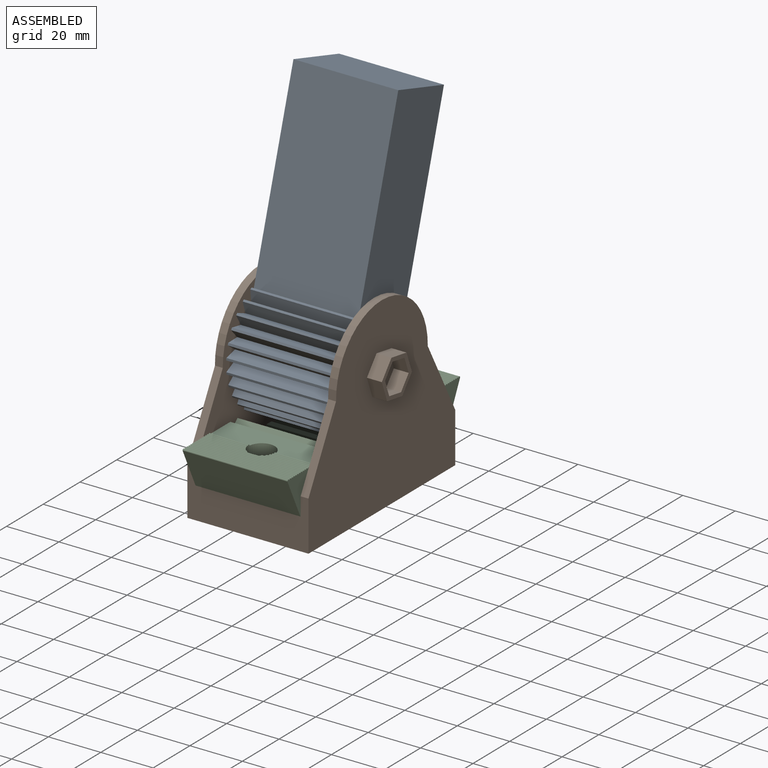
[diagram: assembled view]
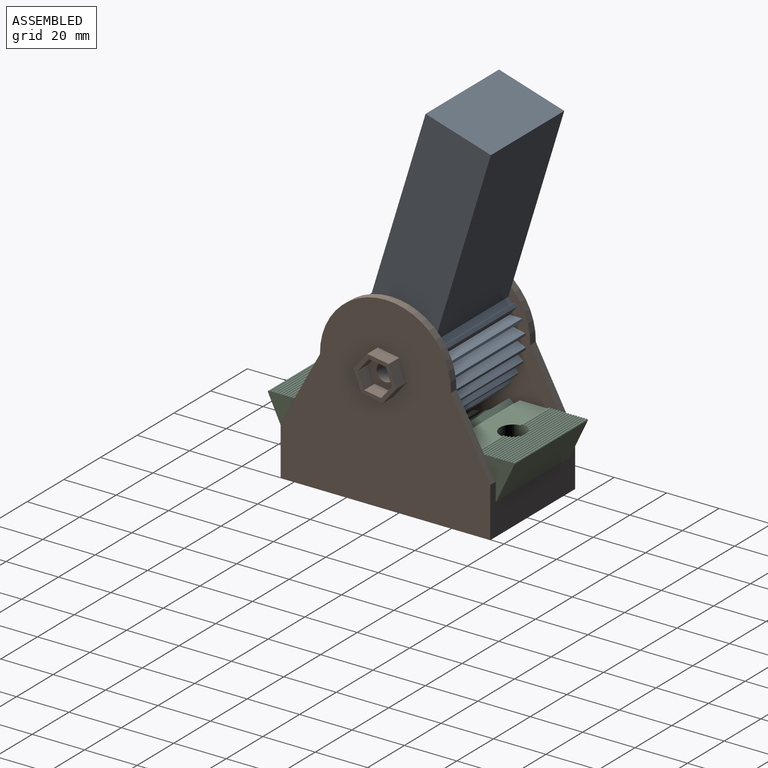
[diagram: assembled view, second angle]
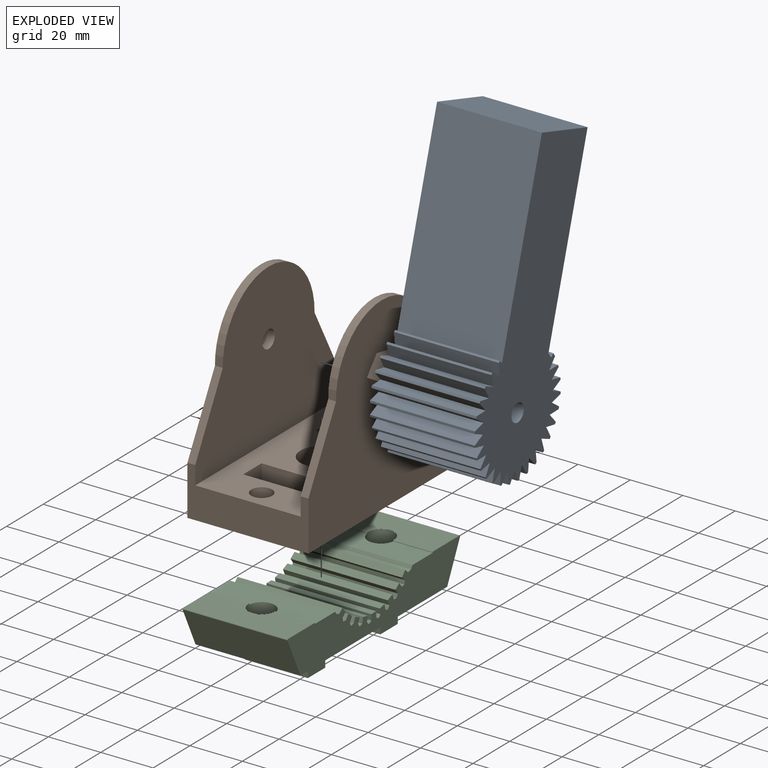
[diagram: exploded view]
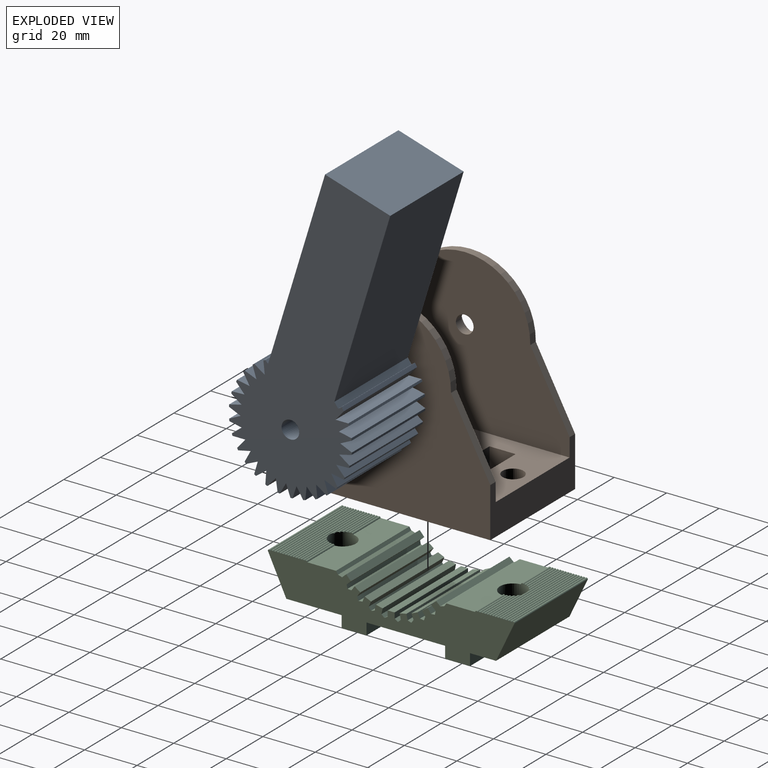
[diagram: exploded view, second angle]
ASSEMBLY  parts=3 mates=2
PART A: 79 faces, bbox 40x47x114.8 mm
  f0: plane 74.37x40mm, normal (0,-1,0), area 2974.9mm2, adj f1,f75,f77,f78
  f1: plane 40x1.29mm, normal (0,0.49,0.87), area 59.3mm2, adj f0,f2,f77,f78
  f2: cylinder r=23.5mm len=40mm, axis (1,0,0), area 33.2mm2, adj f1,f3,f77,f78
  f3: plane 40x4.47mm, normal (0,-0.92,-0.39), area 194.5mm2, adj f2,f4,f77,f78
  f4: plane 40x4.65mm, normal (0,0.29,0.96), area 194.5mm2, adj f3,f5,f77,f78
  f5: cylinder r=23.5mm len=40mm, axis (1,0,0), area 33.2mm2, adj f4,f6,f77,f78
  f6: plane 40x3.98mm, normal (0,-0.82,-0.58), area 194.5mm2, adj f5,f7,f77,f78
  f7: plane 40x4.84mm, normal (0,0.09,1), area 194.5mm2, adj f6,f8,f77,f78
  f8: cylinder r=23.5mm len=40mm, axis (1,0,0), area 33.2mm2, adj f7,f9,f77,f78
  f9: plane 40x3.56mm, normal (0,-0.68,-0.73), area 194.5mm2, adj f8,f10,f77,f78
  f10: plane 40x4.83mm, normal (0,-0.12,0.99), area 194.5mm2, adj f9,f11,f77,f78
  f11: cylinder r=23.5mm len=40mm, axis (1,0,0), area 33.2mm2, adj f10,f12,f77,f78
  f12: plane 40x4.17mm, normal (0,-0.51,-0.86), area 194.5mm2, adj f11,f13,f77,f78
  f13: plane 40x4.6mm, normal (0,-0.32,0.95), area 194.5mm2, adj f12,f14,f77,f78
  f14: cylinder r=23.5mm len=40mm, axis (1,0,0), area 33.2mm2, adj f13,f15,f77,f78
  f15: plane 40x4.6mm, normal (0,-0.32,-0.95), area 194.5mm2, adj f14,f16,f77,f78
  f16: plane 40x4.17mm, normal (0,-0.51,0.86), area 194.5mm2, adj f15,f17,f77,f78
  f17: cylinder r=23.5mm len=40mm, axis (1,0,0), area 33.2mm2, adj f16,f18,f77,f78
  f18: plane 40x4.83mm, normal (0,-0.12,-0.99), area 194.5mm2, adj f17,f19,f77,f78
  f19: plane 40x3.56mm, normal (0,-0.68,0.73), area 194.5mm2, adj f18,f20,f77,f78
  f20: cylinder r=23.5mm len=40mm, axis (1,0,0), area 33.2mm2, adj f19,f21,f77,f78
  f21: plane 40x4.84mm, normal (0,0.09,-1), area 194.5mm2, adj f20,f22,f77,f78
  f22: plane 40x3.98mm, normal (0,-0.82,0.58), area 194.5mm2, adj f21,f23,f77,f78
  f23: cylinder r=23.5mm len=40mm, axis (1,0,0), area 33.2mm2, adj f22,f24,f77,f78
  f24: plane 40x4.65mm, normal (0,0.29,-0.96), area 194.5mm2, adj f23,f25,f77,f78
  f25: plane 40x4.47mm, normal (0,-0.92,0.39), area 194.5mm2, adj f24,f26,f77,f78
  f26: cylinder r=23.5mm len=40mm, axis (1,0,0), area 33.2mm2, adj f25,f27,f77,f78
  f27: plane 40x4.25mm, normal (0,0.49,-0.87), area 194.5mm2, adj f26,f28,f77,f78
  f28: plane 40x4.77mm, normal (0,-0.98,0.19), area 194.5mm2, adj f27,f29,f77,f78
  f29: cylinder r=23.5mm len=40mm, axis (1,0,0), area 33.2mm2, adj f28,f30,f77,f78
  f30: plane 40x3.66mm, normal (0,0.66,-0.75), area 194.5mm2, adj f29,f31,f77,f78
  f31: plane 40x4.86mm, normal (0,-1,-0.01), area 194.5mm2, adj f30,f32,f77,f78
  f32: cylinder r=23.5mm len=40mm, axis (1,0,0), area 33.2mm2, adj f31,f33,f77,f78
  f33: plane 40x3.89mm, normal (0,0.8,-0.6), area 194.5mm2, adj f32,f34,f77,f78
  f34: plane 40x4.74mm, normal (0,-0.97,-0.22), area 194.5mm2, adj f33,f35,f77,f78
  f35: cylinder r=23.5mm len=40mm, axis (1,0,0), area 33.2mm2, adj f34,f36,f77,f78
  f36: plane 40x4.41mm, normal (0,0.91,-0.42), area 194.5mm2, adj f35,f37,f77,f78
  f37: plane 40x4.41mm, normal (0,-0.91,-0.42), area 194.5mm2, adj f36,f38,f77,f78
  f38: cylinder r=23.5mm len=40mm, axis (1,0,0), area 33.2mm2, adj f37,f39,f77,f78
  f39: plane 40x4.74mm, normal (0,0.97,-0.22), area 194.5mm2, adj f38,f40,f77,f78
  f40: plane 40x3.89mm, normal (0,-0.8,-0.6), area 194.5mm2, adj f39,f41,f77,f78
  f41: cylinder r=23.5mm len=40mm, axis (1,0,0), area 33.2mm2, adj f40,f42,f77,f78
  f42: plane 40x4.86mm, normal (0,1,-0.01), area 194.5mm2, adj f41,f43,f77,f78
  f43: plane 40x3.66mm, normal (0,-0.66,-0.75), area 194.5mm2, adj f42,f44,f77,f78
  f44: cylinder r=23.5mm len=40mm, axis (1,0,0), area 33.2mm2, adj f43,f45,f77,f78
  f45: plane 40x4.77mm, normal (0,0.98,0.19), area 194.5mm2, adj f44,f46,f77,f78
  f46: plane 40x4.25mm, normal (0,-0.49,-0.87), area 194.5mm2, adj f45,f47,f77,f78
  f47: cylinder r=23.5mm len=40mm, axis (1,0,0), area 33.2mm2, adj f46,f48,f77,f78
  f48: plane 40x4.47mm, normal (0,0.92,0.39), area 194.5mm2, adj f47,f49,f77,f78
  f49: plane 40x4.65mm, normal (0,-0.29,-0.96), area 194.5mm2, adj f48,f50,f77,f78
  f50: cylinder r=23.5mm len=40mm, axis (1,0,0), area 33.2mm2, adj f49,f51,f77,f78
  f51: plane 40x3.98mm, normal (0,0.82,0.58), area 194.5mm2, adj f50,f52,f77,f78
  f52: plane 40x4.84mm, normal (0,-0.09,-1), area 194.5mm2, adj f51,f53,f77,f78
  f53: cylinder r=23.5mm len=40mm, axis (1,0,0), area 33.2mm2, adj f52,f54,f77,f78
  f54: plane 40x3.56mm, normal (0,0.68,0.73), area 194.5mm2, adj f53,f55,f77,f78
  f55: plane 40x4.83mm, normal (0,0.12,-0.99), area 194.5mm2, adj f54,f56,f77,f78
  f56: cylinder r=23.5mm len=40mm, axis (1,0,0), area 33.2mm2, adj f55,f57,f77,f78
  f57: plane 40x4.17mm, normal (0,0.51,0.86), area 194.5mm2, adj f56,f58,f77,f78
  f58: plane 40x4.6mm, normal (0,0.32,-0.95), area 194.5mm2, adj f57,f59,f77,f78
  f59: cylinder r=23.5mm len=40mm, axis (1,0,0), area 33.2mm2, adj f58,f60,f77,f78
  f60: plane 40x4.6mm, normal (0,0.32,0.95), area 194.5mm2, adj f59,f61,f77,f78
  f61: plane 40x4.17mm, normal (0,0.51,-0.86), area 194.5mm2, adj f60,f62,f77,f78
  f62: cylinder r=23.5mm len=40mm, axis (1,0,0), area 33.2mm2, adj f61,f63,f77,f78
  f63: plane 40x4.83mm, normal (0,0.12,0.99), area 194.5mm2, adj f62,f64,f77,f78
  f64: plane 40x3.56mm, normal (0,0.68,-0.73), area 194.5mm2, adj f63,f65,f77,f78
  f65: cylinder r=23.5mm len=40mm, axis (1,0,0), area 33.2mm2, adj f64,f66,f77,f78
  f66: plane 40x4.84mm, normal (0,-0.09,1), area 194.5mm2, adj f65,f67,f77,f78
  f67: plane 40x3.98mm, normal (0,0.82,-0.58), area 194.5mm2, adj f66,f68,f77,f78
  f68: cylinder r=23.5mm len=40mm, axis (1,0,0), area 33.2mm2, adj f67,f69,f77,f78
  f69: plane 40x4.65mm, normal (0,-0.29,0.96), area 194.5mm2, adj f68,f70,f77,f78
  f70: plane 40x4.47mm, normal (0,0.92,-0.39), area 194.5mm2, adj f69,f71,f77,f78
  f71: cylinder r=23.5mm len=40mm, axis (1,0,0), area 62mm2, adj f70,f72,f77,f78
  f72: plane 40x1.3mm, normal (0,-0.81,0.59), area 64.2mm2, adj f71,f73,f77,f78
  f73: plane 40x2mm, normal (0,0.59,0.81), area 99.1mm2, adj f72,f74,f77,f78
  f74: plane 73.03x40mm, normal (0,1,0), area 2921.1mm2, adj f73,f75,f77,f78
  f75: plane 40x26.03mm, normal (0,0,1), area 1041.4mm2, adj f0,f74,f77,f78
  f76: cylinder r=3.38mm len=40mm, axis (1,0,0), area 848.2mm2, adj f77,f78
  f77: plane 114.8x47mm, normal (-1,0,0), area 3281.3mm2, adj f0,f1,f2,f3,f4,f5,f6,f7
  f78: plane 114.8x47mm, normal (1,0,0), area 3281.3mm2, adj f0,f1,f2,f3,f4,f5,f6,f7
PART B: 48 faces, bbox 55.9x80x72.2 mm
  f0: plane 80x72.2mm, normal (1,0,0), area 4149.8mm2, adj f3,f5,f9,f25,f26,f27,f35,f36
  f1: plane 12.5x12.5mm, normal (-1,0,0), area 86.9mm2, adj f10,f32
  f2: plane 80x40.2mm, normal (0,0,1), area 2414.4mm2, adj f4,f5,f9,f12,f14,f15,f16,f18
  f3: plane 80x46.2mm, normal (0,0,-1), area 3595.5mm2, adj f0,f5,f9,f11,f22,f23
  f4: plane 80x60.2mm, normal (1,0,0), area 3332.4mm2, adj f2,f5,f6,f7,f8,f9,f10
  f5: plane 46.2x19mm, normal (0,1,0), area 596.4mm2, adj f0,f2,f3,f4,f6,f11,f24,f25
  f6: plane 27.78x15mm, normal (0,0.88,0.48), area 94.7mm2, adj f4,f5,f7,f11
  f7: cylinder r=25mm len=50mm, axis (1,0,0), area 238.1mm2, adj f4,f6,f8,f11
  f8: plane 27.78x15mm, normal (0,-0.88,0.48), area 94.7mm2, adj f4,f7,f9,f11
  f9: plane 46.2x19mm, normal (0,-1,0), area 596.4mm2, adj f0,f2,f3,f4,f8,f11,f24,f27
  f10: cylinder r=3.38mm len=6.75mm, axis (1,0,0), area 63.6mm2, adj f1,f4
  f11: plane 80x72.2mm, normal (-1,0,0), area 4174.2mm2, adj f3,f5,f6,f7,f8,f9,f33
  f12: cylinder r=8mm len=16mm, axis (0,0,1), area 502.7mm2, adj f2,f13
  f13: plane 16x16mm, normal (0,0,1), area 201.1mm2, adj f12
  f14: plane 25x10mm, normal (0,-1,0), area 250mm2, adj f2,f15,f17,f30
  f15: plane 10x10mm, normal (1,0,0), area 100mm2, adj f2,f14,f16,f17
  f16: plane 25x10mm, normal (0,1,0), area 250mm2, adj f2,f15,f17,f30
  f17: plane 25x10mm, normal (0,0,1), area 250mm2, adj f14,f15,f16,f30
  f18: plane 25x10mm, normal (0,-1,0), area 250mm2, adj f2,f19,f21,f31
  f19: plane 10x10mm, normal (1,0,0), area 100mm2, adj f2,f18,f20,f21
  f20: plane 25x10mm, normal (0,1,0), area 250mm2, adj f2,f19,f21,f31
  f21: plane 25x10mm, normal (0,0,1), area 250mm2, adj f18,f19,f20,f31
  f22: cylinder r=4mm len=12mm, axis (0,0,1), area 301.6mm2, adj f2,f3
  f23: cylinder r=4mm len=12mm, axis (0,0,1), area 301.6mm2, adj f2,f3
  f24: plane 80x60.2mm, normal (-1,0,0), area 3332.4mm2, adj f2,f5,f9,f25,f26,f27,f28
  f25: plane 27.78x15mm, normal (0,0.88,0.48), area 94.7mm2, adj f0,f5,f24,f26
  f26: cylinder r=25mm len=50mm, axis (-1,0,0), area 238.1mm2, adj f0,f24,f25,f27
  f27: plane 27.78x15mm, normal (0,-0.88,0.48), area 94.7mm2, adj f0,f9,f24,f26
  f28: cylinder r=3.38mm len=6.75mm, axis (-1,0,0), area 63.6mm2, adj f24,f29
  f29: plane 12.94x12.26mm, normal (1,0,0), area 75.8mm2, adj f28,f40,f41,f42,f43,f44,f45
  f30: plane 10x10mm, normal (-1,0,0), area 100mm2, adj f2,f14,f16,f17
  f31: plane 10x10mm, normal (-1,0,0), area 100mm2, adj f2,f18,f20,f21
  f32: cylinder r=6.25mm len=12.5mm, axis (1,0,0), area 157.1mm2, adj f1,f34
  f33: cylinder r=7mm len=14mm, axis (1,0,0), area 175.9mm2, adj f11,f34
  f34: plane 14x14mm, normal (-1,0,0), area 31.2mm2, adj f32,f33
  f35: plane 8.18x5.7mm, normal (0,0.16,0.99), area 47.2mm2, adj f0,f36,f46,f47
  f36: plane 6.42x5.7mm, normal (0,-0.77,0.63), area 47.2mm2, adj f0,f35,f37,f47
  f37: plane 7.75x5.7mm, normal (0,-0.94,-0.35), area 47.2mm2, adj f0,f36,f38,f47
  f38: plane 8.18x5.7mm, normal (0,-0.16,-0.99), area 47.2mm2, adj f0,f37,f39,f47
  f39: plane 6.42x5.7mm, normal (0,0.77,-0.63), area 47.2mm2, adj f0,f38,f46,f47
  f40: plane 6.47x5.7mm, normal (0,-0.16,-0.99), area 37.4mm2, adj f29,f41,f45,f47
  f41: plane 6.13x5.7mm, normal (0,-0.94,-0.35), area 37.4mm2, adj f29,f40,f42,f47
  f42: plane 5.7x5.07mm, normal (0,-0.77,0.63), area 37.4mm2, adj f29,f41,f43,f47
  f43: plane 6.47x5.7mm, normal (0,0.16,0.99), area 37.4mm2, adj f29,f42,f44,f47
  f44: plane 6.13x5.7mm, normal (0,0.94,0.35), area 37.4mm2, adj f29,f43,f45,f47
  f45: plane 5.7x5.07mm, normal (0,0.77,-0.63), area 37.4mm2, adj f29,f40,f44,f47
  f46: plane 7.75x5.7mm, normal (0,0.94,0.35), area 47.2mm2, adj f0,f35,f39,f47
  f47: plane 16.35x15.5mm, normal (1,0,0), area 66.8mm2, adj f35,f36,f37,f38,f39,f40,f41,f42
PART C: 108 faces, bbox 40x94.1x24.2 mm
  f0: plane 80x40mm, normal (0,0,-1), area 2443.8mm2, adj f17,f18,f92,f93,f94,f96,f97,f98
  f1: cylinder r=0.5mm len=40mm, axis (-1,0,0), area 60.5mm2, adj f2,f3,f27,f92,f93,f107
  f2: cylinder r=0.5mm len=17.93mm, axis (-1,0,0), area 26.9mm2, adj f1,f4,f92,f107
  f3: cylinder r=0.5mm len=17.93mm, axis (-1,0,0), area 26.9mm2, adj f1,f5,f93,f107
  f4: cylinder r=0.5mm len=16.48mm, axis (-1,0,0), area 25.2mm2, adj f2,f6,f92,f107
  f5: cylinder r=0.5mm len=16.48mm, axis (-1,0,0), area 25.2mm2, adj f3,f7,f93,f107
  f6: cylinder r=0.5mm len=15.7mm, axis (-1,0,0), area 24.3mm2, adj f4,f8,f92,f107
  f7: cylinder r=0.5mm len=15.7mm, axis (-1,0,0), area 24.3mm2, adj f5,f9,f93,f107
  f8: cylinder r=0.5mm len=15.25mm, axis (-1,0,0), area 23.8mm2, adj f6,f10,f92,f107
  f9: cylinder r=0.5mm len=15.25mm, axis (-1,0,0), area 23.8mm2, adj f7,f11,f93,f107
  f10: cylinder r=0.5mm len=15.03mm, axis (-1,0,0), area 23.6mm2, adj f8,f28,f92,f107
  f11: cylinder r=0.5mm len=15.03mm, axis (-1,0,0), area 23.6mm2, adj f9,f28,f93,f107
  f12: cylinder r=0.5mm len=15.03mm, axis (-1,0,0), area 23.6mm2, adj f13,f76,f92,f106
  f13: cylinder r=0.5mm len=15.25mm, axis (-1,0,0), area 23.8mm2, adj f12,f14,f92,f106
  f14: cylinder r=0.5mm len=15.7mm, axis (-1,0,0), area 24.3mm2, adj f13,f15,f92,f106
  f15: cylinder r=0.5mm len=16.48mm, axis (-1,0,0), area 25.2mm2, adj f14,f16,f92,f106
  f16: cylinder r=0.5mm len=17.93mm, axis (-1,0,0), area 26.9mm2, adj f15,f82,f92,f106
  f17: plane 40x14.72mm, normal (0,-0.9,-0.43), area 652.9mm2, adj f0,f91,f92,f93
  f18: plane 40x14.72mm, normal (0,0.9,-0.43), area 652.9mm2, adj f0,f19,f92,f93
  f19: cylinder r=0.5mm len=40mm, axis (-1,0,0), area 62.8mm2, adj f18,f20,f92,f93
  f20: cylinder r=0.5mm len=40mm, axis (-1,0,0), area 62.8mm2, adj f19,f21,f92,f93
  f21: cylinder r=0.5mm len=40mm, axis (-1,0,0), area 62.8mm2, adj f20,f22,f92,f93
  f22: cylinder r=0.5mm len=40mm, axis (-1,0,0), area 62.8mm2, adj f21,f23,f92,f93
  f23: cylinder r=0.5mm len=40mm, axis (-1,0,0), area 62.8mm2, adj f22,f24,f92,f93
  f24: cylinder r=0.5mm len=40mm, axis (-1,0,0), area 62.8mm2, adj f23,f25,f92,f93
  f25: cylinder r=0.5mm len=40mm, axis (-1,0,0), area 62.8mm2, adj f24,f26,f92,f93
  f26: cylinder r=0.5mm len=40mm, axis (-1,0,0), area 62.8mm2, adj f25,f27,f92,f93
  f27: cylinder r=0.5mm len=40mm, axis (-1,0,0), area 62.8mm2, adj f1,f26,f92,f93
  f28: plane 40x10.99mm, normal (0,0,1), area 404.9mm2, adj f10,f11,f29,f92,f93,f107
  f29: cylinder r=25mm len=40mm, axis (-1,0,0), area 55.1mm2, adj f28,f30,f92,f93
  f30: plane 40x1.54mm, normal (0,-0.3,0.95), area 64.6mm2, adj f29,f31,f92,f93
  f31: plane 40x1.61mm, normal (0,0.67,0.74), area 86.8mm2, adj f30,f32,f92,f93
  f32: plane 40x1.97mm, normal (0,-0.74,0.67), area 105.9mm2, adj f31,f33,f92,f93
  f33: plane 40x1.61mm, normal (0,-0.67,-0.74), area 86.8mm2, adj f32,f34,f92,f93
  f34: plane 40x1.46mm, normal (0,-0.98,0.2), area 59.6mm2, adj f33,f35,f92,f93
  f35: plane 40x1.48mm, normal (0,-0.09,1), area 59.6mm2, adj f34,f36,f92,f93
  f36: plane 40x1.76mm, normal (0,0.81,0.59), area 86.8mm2, adj f35,f37,f92,f93
  f37: plane 40x2.14mm, normal (0,-0.59,0.81), area 105.9mm2, adj f36,f38,f92,f93
  f38: plane 40x1.76mm, normal (0,-0.81,-0.59), area 86.8mm2, adj f37,f39,f92,f93
  f39: plane 40x1.37mm, normal (0,-0.92,0.4), area 59.6mm2, adj f38,f40,f92,f93
  f40: plane 40x1.48mm, normal (0,0.12,0.99), area 59.6mm2, adj f39,f41,f92,f93
  f41: plane 40x1.98mm, normal (0,0.91,0.41), area 86.8mm2, adj f40,f42,f92,f93
  f42: plane 40x2.42mm, normal (0,-0.41,0.91), area 105.9mm2, adj f41,f43,f92,f93
  f43: plane 40x1.98mm, normal (0,-0.91,-0.41), area 86.8mm2, adj f42,f44,f92,f93
  f44: plane 40x1.22mm, normal (0,-0.82,0.58), area 59.6mm2, adj f43,f45,f92,f93
  f45: plane 40x1.41mm, normal (0,0.32,0.95), area 59.6mm2, adj f44,f46,f92,f93
  f46: plane 40x2.12mm, normal (0,0.98,0.21), area 86.8mm2, adj f45,f47,f92,f93
  f47: plane 40x2.59mm, normal (0,-0.21,0.98), area 105.9mm2, adj f46,f48,f92,f93
  f48: plane 40x2.12mm, normal (0,-0.98,-0.21), area 86.8mm2, adj f47,f49,f92,f93
  f49: plane 40x1.1mm, normal (0,-0.68,0.73), area 59.6mm2, adj f48,f50,f92,f93
  f50: plane 40x1.28mm, normal (0,0.51,0.86), area 59.6mm2, adj f49,f51,f92,f93
  f51: plane 40x2.17mm, normal (0,1,0), area 86.8mm2, adj f50,f52,f92,f93
  f52: plane 40x2.65mm, normal (0,0,1), area 105.9mm2, adj f51,f53,f92,f93
  f53: plane 40x2.17mm, normal (0,-1,0), area 86.8mm2, adj f52,f54,f92,f93
  f54: plane 40x1.28mm, normal (0,-0.51,0.86), area 59.6mm2, adj f53,f55,f92,f93
  f55: plane 40x1.1mm, normal (0,0.68,0.73), area 59.6mm2, adj f54,f56,f92,f93
  f56: plane 40x2.12mm, normal (0,0.98,-0.21), area 86.8mm2, adj f55,f57,f92,f93
  f57: plane 40x2.59mm, normal (0,0.21,0.98), area 105.9mm2, adj f56,f58,f92,f93
  f58: plane 40x2.12mm, normal (0,-0.98,0.21), area 86.8mm2, adj f57,f59,f92,f93
  f59: plane 40x1.41mm, normal (0,-0.32,0.95), area 59.6mm2, adj f58,f60,f92,f93
  f60: plane 40x1.22mm, normal (0,0.82,0.58), area 59.6mm2, adj f59,f61,f92,f93
  f61: plane 40x1.98mm, normal (0,0.91,-0.41), area 86.8mm2, adj f60,f62,f92,f93
  f62: plane 40x2.42mm, normal (0,0.41,0.91), area 105.9mm2, adj f61,f63,f92,f93
  f63: plane 40x1.98mm, normal (0,-0.91,0.41), area 86.8mm2, adj f62,f64,f92,f93
  f64: plane 40x1.48mm, normal (0,-0.12,0.99), area 59.6mm2, adj f63,f65,f92,f93
  f65: plane 40x1.37mm, normal (0,0.92,0.4), area 59.6mm2, adj f64,f66,f92,f93
  f66: plane 40x1.76mm, normal (0,0.81,-0.59), area 86.8mm2, adj f65,f67,f92,f93
  f67: plane 40x2.14mm, normal (0,0.59,0.81), area 105.9mm2, adj f66,f68,f92,f93
  f68: plane 40x1.76mm, normal (0,-0.81,0.59), area 86.8mm2, adj f67,f69,f92,f93
  f69: plane 40x1.48mm, normal (0,0.09,1), area 59.6mm2, adj f68,f70,f92,f93
  f70: plane 40x1.46mm, normal (0,0.98,0.2), area 59.6mm2, adj f69,f71,f92,f93
  f71: plane 40x1.61mm, normal (0,0.67,-0.74), area 86.8mm2, adj f70,f72,f92,f93
  f72: plane 40x1.97mm, normal (0,0.74,0.67), area 105.9mm2, adj f71,f73,f92,f93
  f73: plane 40x1.61mm, normal (0,-0.67,0.74), area 86.8mm2, adj f72,f74,f92,f93
  f74: plane 40x1.54mm, normal (0,0.3,0.95), area 64.6mm2, adj f73,f75,f92,f93
  f75: cylinder r=25mm len=40mm, axis (-1,0,0), area 55.1mm2, adj f74,f76,f92,f93
  f76: plane 40x10.99mm, normal (0,0,1), area 404.9mm2, adj f12,f75,f77,f92,f93,f106
  f77: cylinder r=0.5mm len=15.03mm, axis (-1,0,0), area 23.6mm2, adj f76,f78,f93,f106
  f78: cylinder r=0.5mm len=15.25mm, axis (-1,0,0), area 23.8mm2, adj f77,f79,f93,f106
  f79: cylinder r=0.5mm len=15.7mm, axis (-1,0,0), area 24.3mm2, adj f78,f80,f93,f106
  f80: cylinder r=0.5mm len=16.48mm, axis (-1,0,0), area 25.2mm2, adj f79,f81,f93,f106
  f81: cylinder r=0.5mm len=17.93mm, axis (-1,0,0), area 26.9mm2, adj f80,f82,f93,f106
  f82: cylinder r=0.5mm len=40mm, axis (-1,0,0), area 60.5mm2, adj f16,f81,f83,f92,f93,f106
  f83: cylinder r=0.5mm len=40mm, axis (-1,0,0), area 62.8mm2, adj f82,f84,f92,f93
  f84: cylinder r=0.5mm len=40mm, axis (-1,0,0), area 62.8mm2, adj f83,f85,f92,f93
  f85: cylinder r=0.5mm len=40mm, axis (-1,0,0), area 62.8mm2, adj f84,f86,f92,f93
  f86: cylinder r=0.5mm len=40mm, axis (-1,0,0), area 62.8mm2, adj f85,f87,f92,f93
  f87: cylinder r=0.5mm len=40mm, axis (-1,0,0), area 62.8mm2, adj f86,f88,f92,f93
  f88: cylinder r=0.5mm len=40mm, axis (-1,0,0), area 62.8mm2, adj f87,f89,f92,f93
  f89: cylinder r=0.5mm len=40mm, axis (-1,0,0), area 62.8mm2, adj f88,f90,f92,f93
  f90: cylinder r=0.5mm len=40mm, axis (-1,0,0), area 62.8mm2, adj f89,f91,f92,f93
  f91: cylinder r=0.5mm len=40mm, axis (-1,0,0), area 62.8mm2, adj f17,f90,f92,f93
  f92: plane 94.1x15.22mm, normal (1,0,0), area 1037.4mm2, adj f0,f1,f2,f4,f6,f8,f10,f12
  f93: plane 94.1x15.22mm, normal (-1,0,0), area 1037.4mm2, adj f0,f1,f3,f5,f7,f9,f11,f17
  f94: cylinder r=6.75mm len=13.5mm, axis (0,0,-1), area 84.8mm2, adj f0,f95
  f95: plane 13.5x13.5mm, normal (0,0,-1), area 143.1mm2, adj f94
  f96: plane 24x9mm, normal (0,-1,0), area 216mm2, adj f0,f97,f99,f100
  f97: plane 9.5x9mm, normal (-1,0,0), area 85.5mm2, adj f0,f96,f98,f100
  f98: plane 24x9mm, normal (0,1,0), area 216mm2, adj f0,f97,f99,f100
  f99: plane 9.5x9mm, normal (1,0,0), area 85.5mm2, adj f0,f96,f98,f100
  f100: plane 24x9.5mm, normal (0,0,-1), area 228mm2, adj f96,f97,f98,f99
  f101: plane 9.5x9mm, normal (-1,0,0), area 85.5mm2, adj f0,f102,f104,f105
  f102: plane 24x9mm, normal (0,1,0), area 216mm2, adj f0,f101,f103,f105
  f103: plane 9.5x9mm, normal (1,0,0), area 85.5mm2, adj f0,f102,f104,f105
  f104: plane 24x9mm, normal (0,-1,0), area 216mm2, adj f0,f101,f103,f105
  f105: plane 24x9.5mm, normal (0,0,-1), area 228mm2, adj f101,f102,f103,f104
  f106: cylinder r=5mm len=15.22mm, axis (0,0,-1), area 469.1mm2, adj f0,f12,f13,f14,f15,f16,f76,f77
  f107: cylinder r=5mm len=15.22mm, axis (0,0,-1), area 469.1mm2, adj f0,f1,f2,f3,f4,f5,f6,f7
PLACE A rot(axis=(-1,0,0),17deg) t=(172.91,41.92,-75.93)mm
PLACE B t=(82.71,41.92,-75.93)mm fixed
PLACE C t=(132.81,41.92,-82.93)mm
MATE fastened C.f94 <-> B.f12  axis (0,0,-1) through (152.81,41.92,-111.12)mm
MATE revolute A.f76 <-> B.f7  axis (1,0,0) through (172.91,41.92,-75.93)mm
